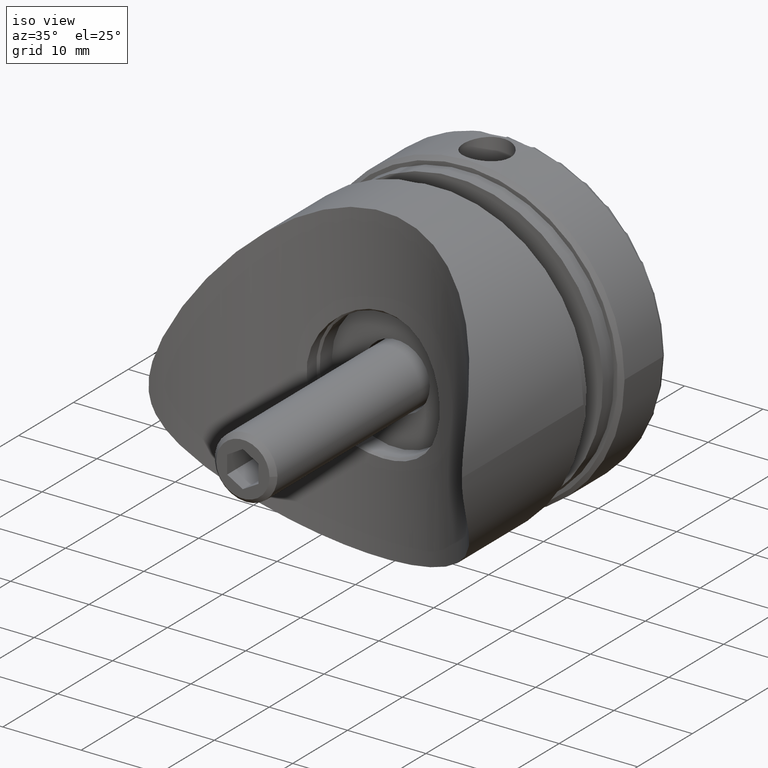
[diagram: clean part render]
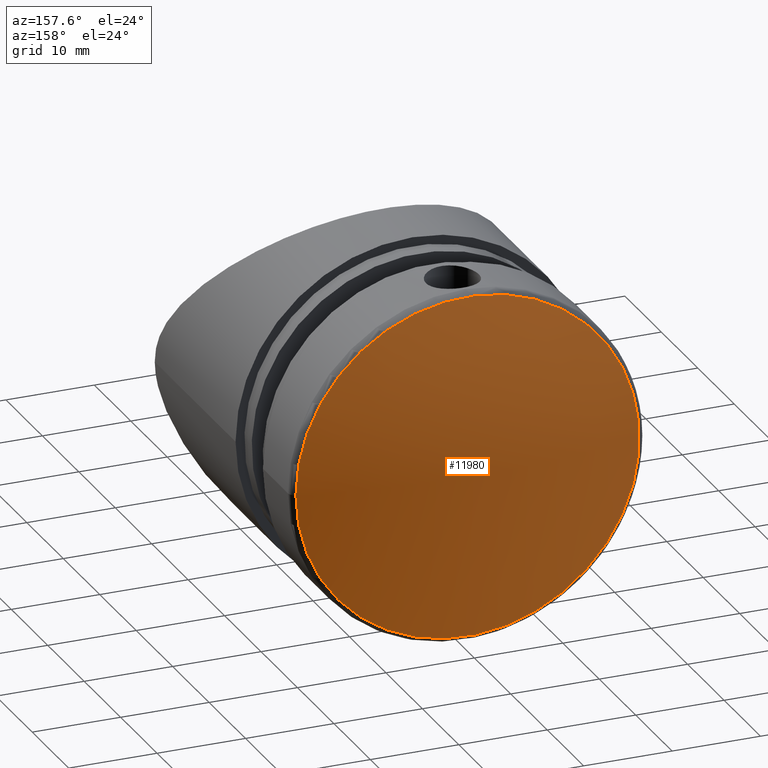
[diagram: tour spotlight — one face highlighted and labeled with its STEP entity id]
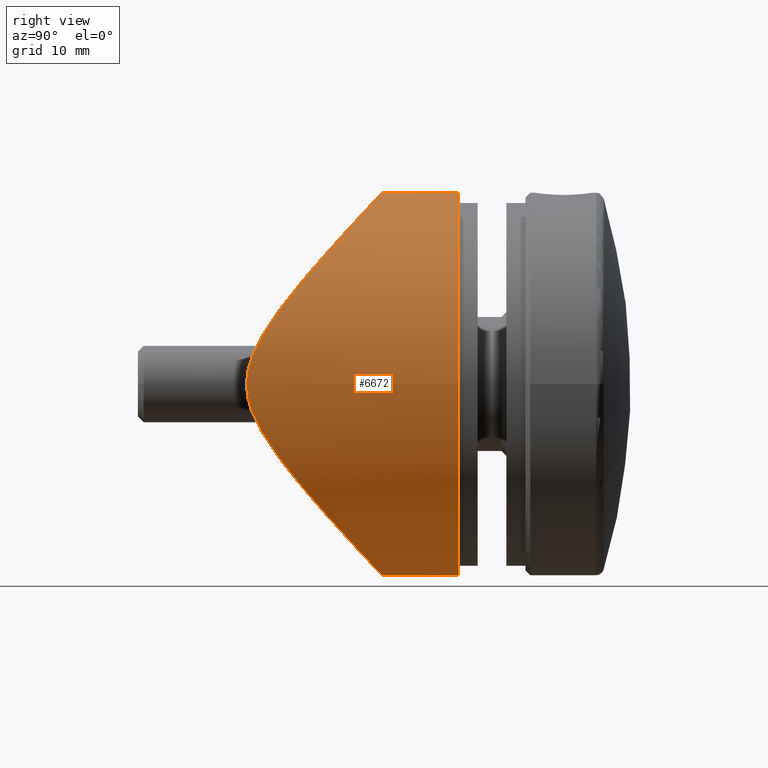
[diagram: tour spotlight — one face highlighted and labeled with its STEP entity id]
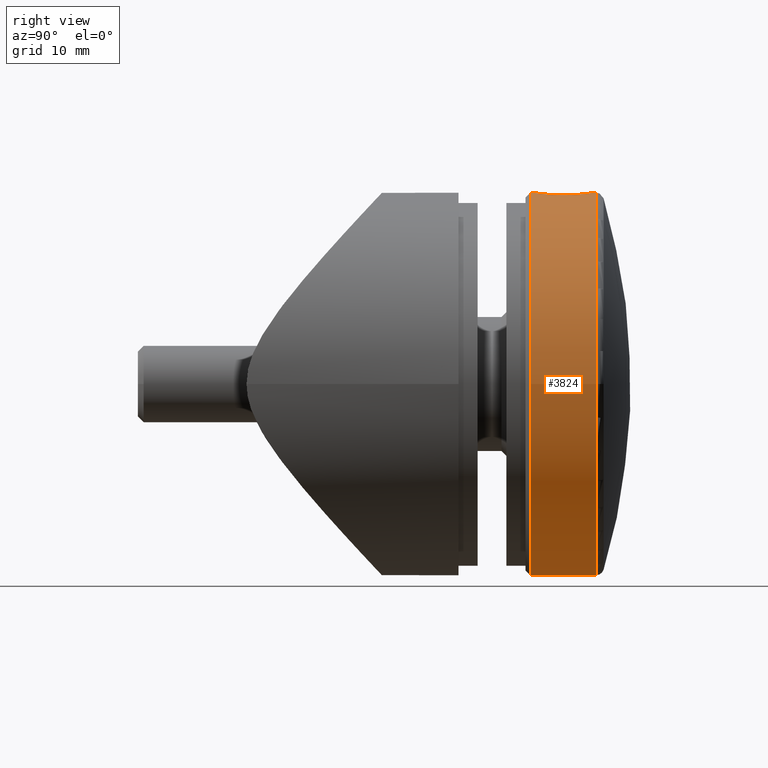
[diagram: tour spotlight — one face highlighted and labeled with its STEP entity id]
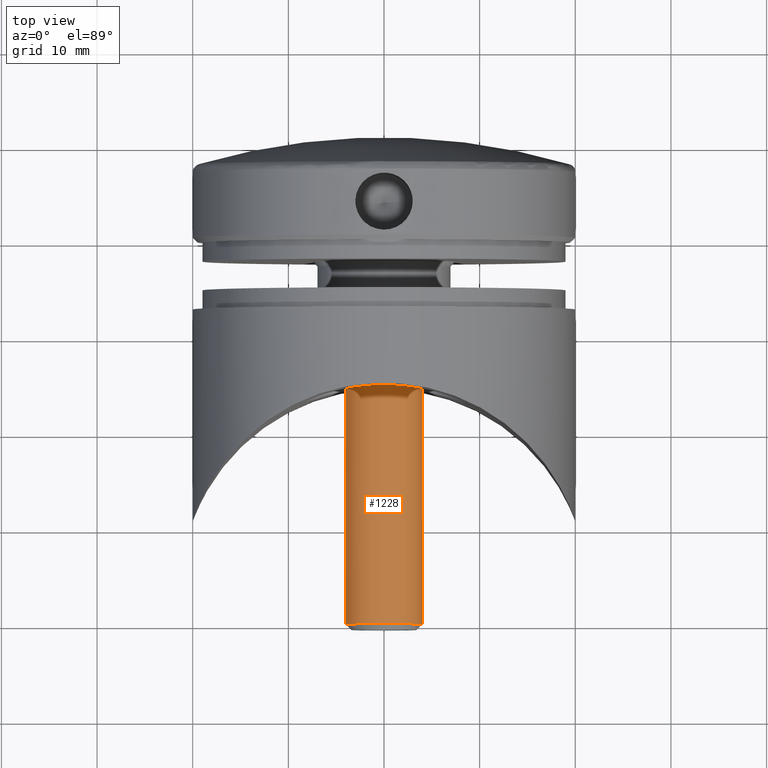
[diagram: tour spotlight — one face highlighted and labeled with its STEP entity id]
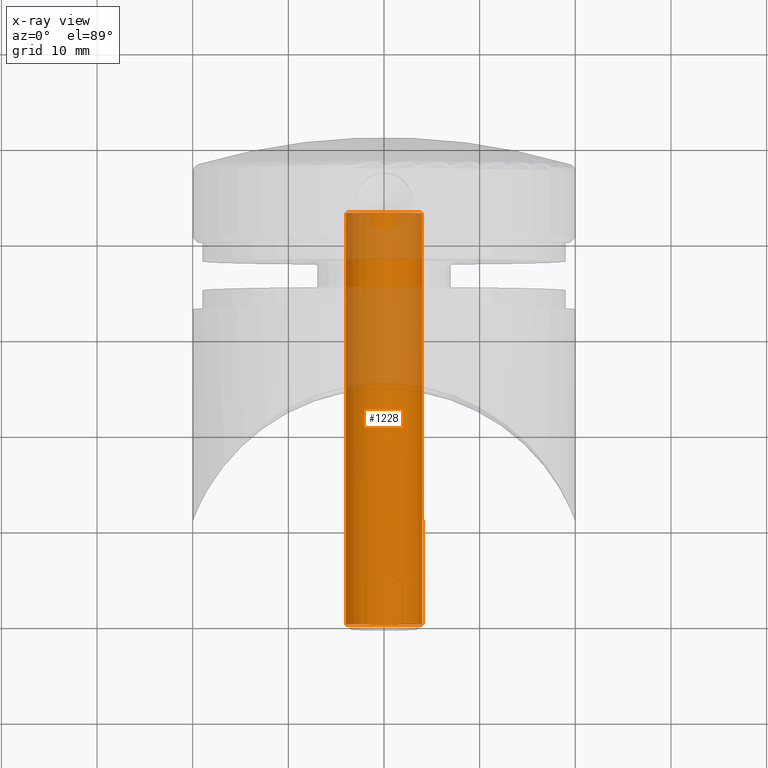
[diagram: x-ray of the same camera — body ghosted, this tour face saturated]
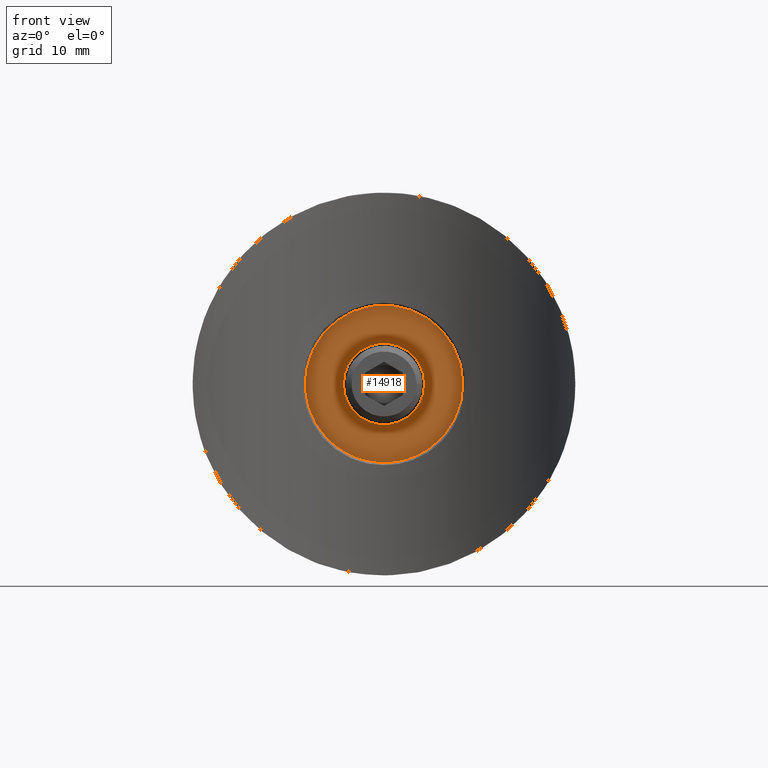
[diagram: tour spotlight — one face highlighted and labeled with its STEP entity id]
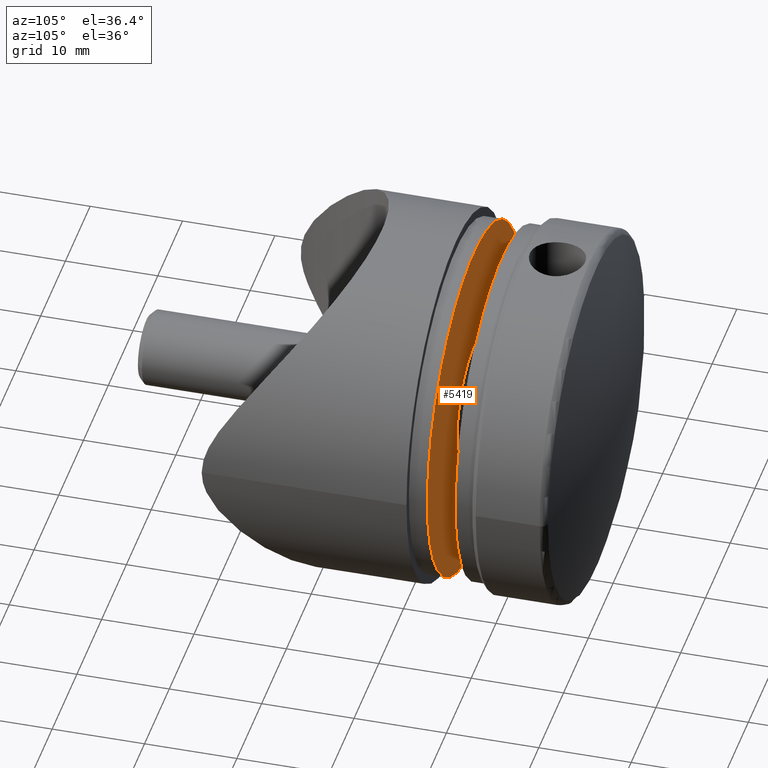
[diagram: tour spotlight — one face highlighted and labeled with its STEP entity id]
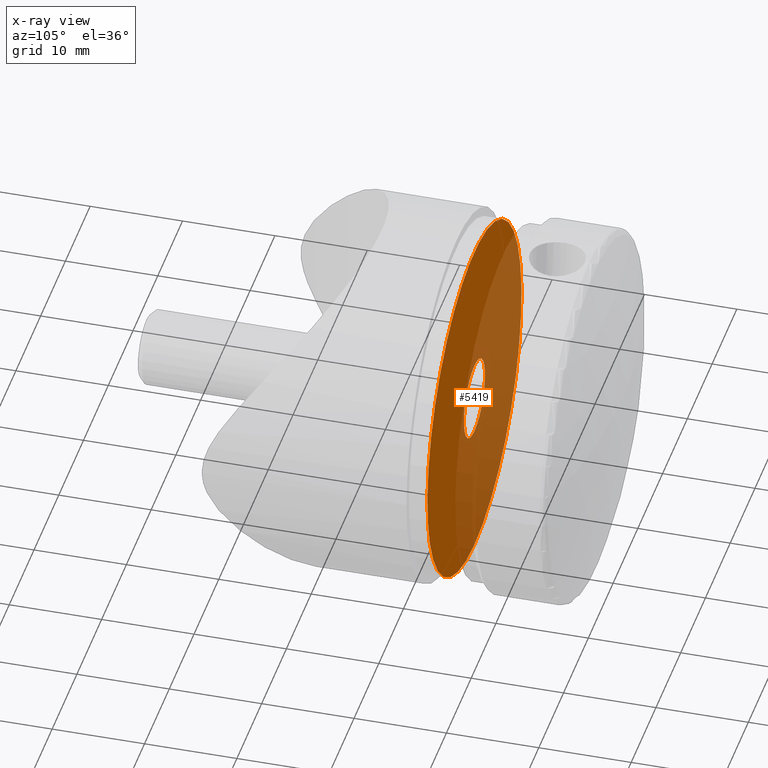
[diagram: x-ray of the same camera — body ghosted, this tour face saturated]
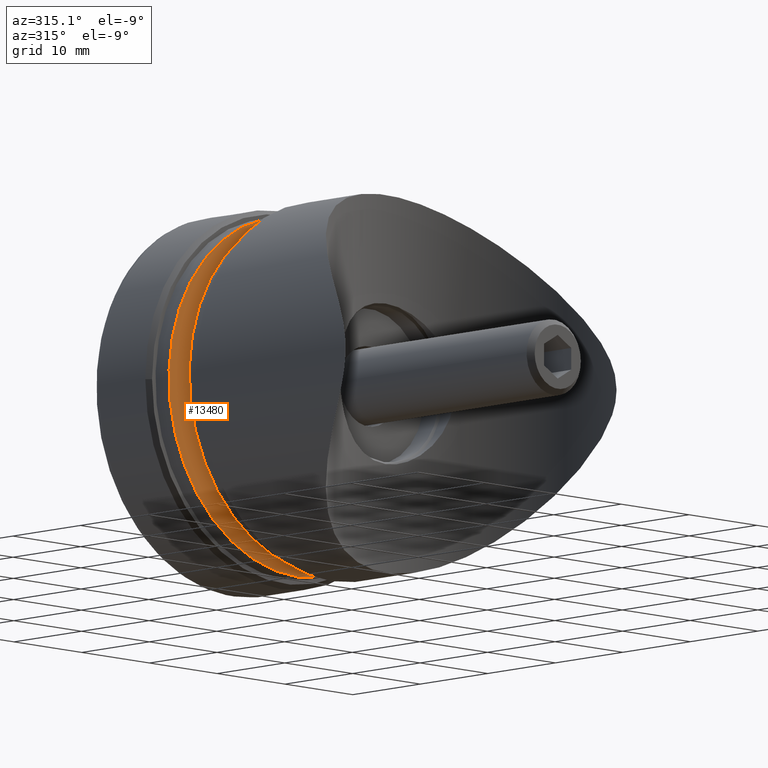
[diagram: tour spotlight — one face highlighted and labeled with its STEP entity id]
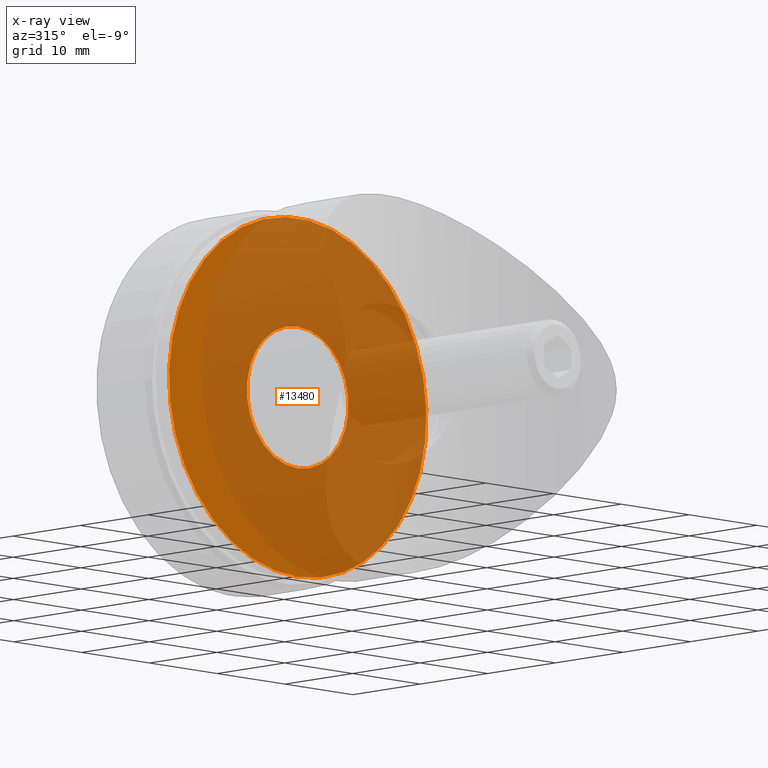
[diagram: x-ray of the same camera — body ghosted, this tour face saturated]
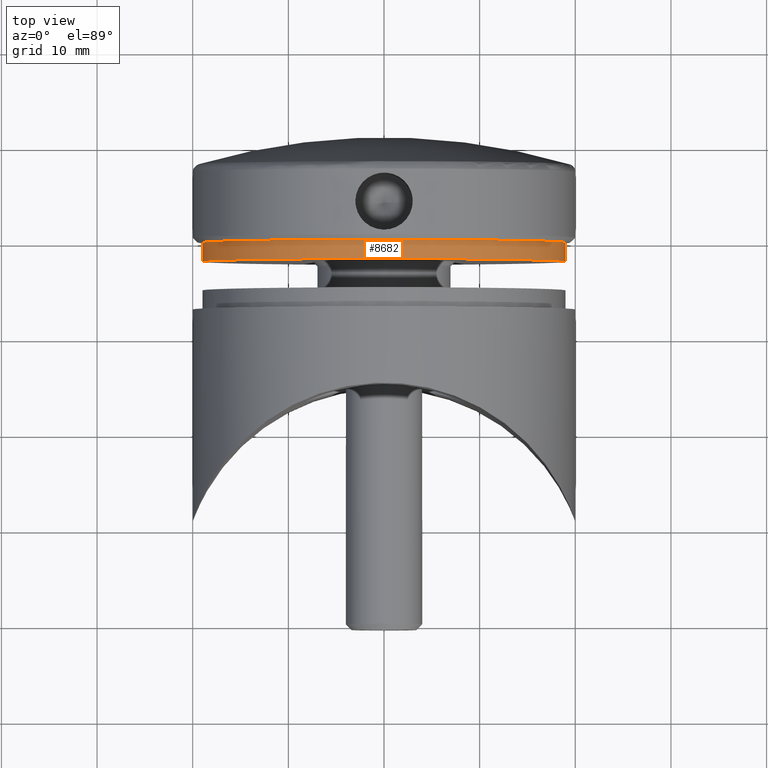
[diagram: tour spotlight — one face highlighted and labeled with its STEP entity id]
A machine part: a face-by-face anatomy tour. The part has 277 B-rep faces; the first image is the clean iso view, then the 8 largest visible faces are spotlighted one at a time (largest first), each with its STEP entity span.

Face 1 — auxiliary view, entity #11980. In plain terms, the highlighted spherical surface has radius 68.1667 mm.
Definition (entity closure, byte-faithful):
#1684 = CIRCLE ( 'NONE', #5597, 19.42800593765462480 ) ;
#1931 = EDGE_CURVE ( 'NONE', #5319, #5319, #1684, .T. ) ;
#2928 = FACE_OUTER_BOUND ( 'NONE', #8890, .T. ) ;
#3150 = DIRECTION ( 'NONE',  ( -9.462128050782586841E-16, 1.000000000000000000, 0.000000000000000000 ) ) ;
#3830 = DIRECTION ( 'NONE',  ( 1.000000000000000000, 9.161375814449584673E-16, 0.000000000000000000 ) ) ;
#4549 = SPHERICAL_SURFACE ( 'NONE', #4595, 68.16666666666708352 ) ;
#4595 = AXIS2_PLACEMENT_3D ( 'NONE', #8556, #4832, #3830 ) ;
#4832 = DIRECTION ( 'NONE',  ( 0.000000000000000000, -0.000000000000000000, 1.000000000000000000 ) ) ;
#5319 = VERTEX_POINT ( 'NONE', #10143 ) ;
#5597 = AXIS2_PLACEMENT_3D ( 'NONE', #6730, #3150, #11395 ) ;
#6730 = CARTESIAN_POINT ( 'NONE',  ( -6.182504818605450607E-14, 8.172808612301588838, 0.000000000000000000 ) ) ;
#8556 = CARTESIAN_POINT ( 'NONE',  ( 0.000000000000000000, -57.16666666666710483, 0.000000000000000000 ) ) ;
#8890 = EDGE_LOOP ( 'NONE', ( #11861 ) ) ;
#10143 = CARTESIAN_POINT ( 'NONE',  ( 19.42800593765456441, 8.172808612301606601, 0.000000000000000000 ) ) ;
#11395 = DIRECTION ( 'NONE',  ( 1.000000000000000000, 9.821882027923899333E-16, 0.000000000000000000 ) ) ;
#11861 = ORIENTED_EDGE ( 'NONE', *, *, #1931, .T. ) ;
#11980 = ADVANCED_FACE ( 'NONE', ( #2928 ), #4549, .T. ) ;

Face 2 — right view, entity #6672. In plain terms, the highlighted cylindrical surface (bore or boss wall) has radius 20 mm, axis along (-0, 1, -0).
Definition (entity closure, byte-faithful):
#34 = CARTESIAN_POINT ( 'NONE',  ( -0.3212517625965335966, 0.0007559221272324281697, 20.00080127770132776 ) ) ;
#78 = CARTESIAN_POINT ( 'NONE',  ( -1.423707661669336710, -0.04468498493483551159, 19.95262876967013455 ) ) ;
#548 = CARTESIAN_POINT ( 'NONE',  ( -20.00000000000001066, -14.16864166750126408, 0.000000000000000000 ) ) ;
#556 = CARTESIAN_POINT ( 'NONE',  ( -20.00000000000000355, -14.16864166750125520, -0.7438538045071343419 ) ) ;
#599 = CARTESIAN_POINT ( 'NONE',  ( -10.67129676124507576, -2.870034114313523510, -16.92819005594848036 ) ) ;
#768 = CARTESIAN_POINT ( 'NONE',  ( -19.95891271088634511, -14.04952605357424567, -1.460462933245232575 ) ) ;
#813 = CARTESIAN_POINT ( 'NONE',  ( 1.443042788460912274, -0.03664859779232368386, -19.96116567197127978 ) ) ;
#864 = CARTESIAN_POINT ( 'NONE',  ( 18.67303099744739825, -11.15113527214379729, 7.188747126023046441 ) ) ;
#926 = CARTESIAN_POINT ( 'NONE',  ( 16.09848629236730844, -7.394677405301776751, 11.88283824967515656 ) ) ;
#981 = CARTESIAN_POINT ( 'NONE',  ( 0.7013865843268883848, 0.0009540175825287750379, -20.00101125874969199 ) ) ;
#1031 = CARTESIAN_POINT ( 'NONE',  ( 19.41571021059040802, -12.68472683629726028, -4.809590501369070736 ) ) ;
#1091 = CARTESIAN_POINT ( 'NONE',  ( -19.80576347567701845, -13.63562562458948690, 2.867558343804631260 ) ) ;
#1145 = CARTESIAN_POINT ( 'NONE',  ( -19.69467694030808858, -13.34595577992201321, 3.542547133079260391 ) ) ;
#1192 = CARTESIAN_POINT ( 'NONE',  ( -4.981900604686585687, -0.5812507076659891858, 19.38286685772382967 ) ) ;
#1240 = CARTESIAN_POINT ( 'NONE',  ( -8.582388430382287936, -1.811952486804913054, 18.06817558892267783 ) ) ;
#2045 = CARTESIAN_POINT ( 'NONE',  ( 16.45215897161035201, -7.819186855976954398, -11.38767656949206497 ) ) ;
#2097 = CARTESIAN_POINT ( 'NONE',  ( 3.601992319121599451, -0.2960723389719750465, -19.68595700613442290 ) ) ;
#2138 = CARTESIAN_POINT ( 'NONE',  ( 13.70907561677181974, -4.988441781101143668, 14.61289565071479757 ) ) ;
#2191 = CARTESIAN_POINT ( 'NONE',  ( 18.88316143225521060, -11.55373589681965107, 6.619165848565370602 ) ) ;
#2248 = CARTESIAN_POINT ( 'NONE',  ( 19.98753685353072029, -14.13327530914729735, -0.7294908835457555307 ) ) ;
#2298 = CARTESIAN_POINT ( 'NONE',  ( -17.41347919499220609, -9.062184775302181805, 9.908423975086908086 ) ) ;
#2344 = CARTESIAN_POINT ( 'NONE',  ( -9.783190704478061051, -2.389470524505219018, 17.44706311454105219 ) ) ;
#2447 = CARTESIAN_POINT ( 'NONE',  ( -17.96716798978661345, -9.907694765512518487, 8.867489265264648424 ) ) ;
#2490 = CARTESIAN_POINT ( 'NONE',  ( -1.787020194496196979, -0.07234012291068590839, 19.92330747089745557 ) ) ;
#2934 = FACE_OUTER_BOUND ( 'NONE', #14609, .T. ) ;
#3117 = CARTESIAN_POINT ( 'NONE',  ( -20.00000000000001066, -14.16864166750126586, 8.673617379884035472E-16 ) ) ;
#3174 = CARTESIAN_POINT ( 'NONE',  ( -19.84552734962819542, -13.74299572348365395, -2.505560089121992462 ) ) ;
#3219 = CARTESIAN_POINT ( 'NONE',  ( 19.25227465473083299, -12.32139646943794808, -5.426959037185787871 ) ) ;
#3266 = CARTESIAN_POINT ( 'NONE',  ( 7.024992678245461697, -1.185492971014122432, -18.73890500303700435 ) ) ;
#3324 = CARTESIAN_POINT ( 'NONE',  ( 8.907623749838556648, -1.950381120722234352, -17.91977040247244801 ) ) ;
#3381 = CARTESIAN_POINT ( 'NONE',  ( 9.537069230093182526, -2.255019603833719799, 17.59228382303989946 ) ) ;
#3417 = EDGE_CURVE ( 'NONE', #7724, #7724, #8132, .T. ) ;
#3428 = CARTESIAN_POINT ( 'NONE',  ( -2.921943097494895003, -0.1529622588425147978, -19.83807041537036397 ) ) ;
#3581 = ORIENTED_EDGE ( 'NONE', *, *, #3417, .F. ) ;
#3619 = CARTESIAN_POINT ( 'NONE',  ( -20.00000000000001066, -14.16864166750126586, 8.673617379884035472E-16 ) ) ;
#3848 = CARTESIAN_POINT ( 'NONE',  ( 3.469446951953610245E-15, 7.999999999999991118, 0.000000000000000000 ) ) ;
#4186 = CARTESIAN_POINT ( 'NONE',  ( -9.525934541221582563, -2.249517287062285931, -17.59820343822726585 ) ) ;
#4244 = CARTESIAN_POINT ( 'NONE',  ( -12.74452116528310341, -4.247792177149228188, -15.42621282774123515 ) ) ;
#4337 = CARTESIAN_POINT ( 'NONE',  ( -18.88809484199479272, -11.56345648507171653, -6.604974506932034473 ) ) ;
#4384 = CARTESIAN_POINT ( 'NONE',  ( 7.667837506907817513, -1.423805830398192418, -18.48426899051388261 ) ) ;
#4434 = CARTESIAN_POINT ( 'NONE',  ( 19.95897499696880217, -14.04957822277978430, 1.463955949833976922 ) ) ;
#4480 = CARTESIAN_POINT ( 'NONE',  ( 10.36794238409684077, -2.705330591957435526, -17.10604587792376208 ) ) ;
#4524 = CARTESIAN_POINT ( 'NONE',  ( 19.16383612291161853, -12.13172280858550955, -5.731019258644068692 ) ) ;
#4580 = CARTESIAN_POINT ( 'NONE',  ( 17.42224631646582722, -9.074649935857944882, -9.893239267418106664 ) ) ;
#4636 = CARTESIAN_POINT ( 'NONE',  ( 2.950422548384595611, -0.1577959843931867612, 19.83293924604878455 ) ) ;
#4678 = CARTESIAN_POINT ( 'NONE',  ( -19.98718859834800554, -14.13228972184805521, 0.7391514785933475107 ) ) ;
#4724 = CARTESIAN_POINT ( 'NONE',  ( -7.008105109339631156, -1.179666498312528011, 18.74512592884875417 ) ) ;
#4817 = AXIS2_PLACEMENT_3D ( 'NONE', #3848, #5104, #7394 ) ;
#5104 = DIRECTION ( 'NONE',  ( 4.336808689942017736E-16, 1.000000000000000000, -0.000000000000000000 ) ) ;
#5409 = CARTESIAN_POINT ( 'NONE',  ( -18.67598394816563001, -11.15649681240542357, -7.181373799001321778 ) ) ;
#5498 = VERTEX_POINT ( 'NONE', #548 ) ;
#5514 = CARTESIAN_POINT ( 'NONE',  ( -1.487572311761780286, -0.001964567381009640033, -19.99791755834841922 ) ) ;
#5563 = CARTESIAN_POINT ( 'NONE',  ( 19.98003232008477070, -14.11204017149825418, -0.9116049903818022049 ) ) ;
#5611 = CARTESIAN_POINT ( 'NONE',  ( 19.42250491849333116, -12.69521890598764280, 4.815885602217600869 ) ) ;
#5663 = CARTESIAN_POINT ( 'NONE',  ( 19.62778134725502710, -13.18615757134551991, -3.854562005284565718 ) ) ;
#5724 = CARTESIAN_POINT ( 'NONE',  ( 10.65019874997200411, -2.866544747162279361, -16.93163805794995014 ) ) ;
#5772 = CARTESIAN_POINT ( 'NONE',  ( -19.91986884554411574, -13.94391070804814703, 1.822529726429121144 ) ) ;
#5788 = DIRECTION ( 'NONE',  ( 4.336808689942017736E-16, 1.000000000000000000, -0.000000000000000000 ) ) ;
#5818 = CARTESIAN_POINT ( 'NONE',  ( -7.650667410228208176, -1.417118552810562981, 18.49142312820937661 ) ) ;
#5922 = CARTESIAN_POINT ( 'NONE',  ( 5.740085814740922388, -0.7800100313007960473, 19.17138699386774547 ) ) ;
#5964 = CARTESIAN_POINT ( 'NONE',  ( -16.44386085859462554, -7.809018180543581877, 11.39960397993303509 ) ) ;
#6605 = CARTESIAN_POINT ( 'NONE',  ( -7.684224586050552475, -1.430175083774353872, -18.47745552695027627 ) ) ;
#6672 = ADVANCED_FACE ( 'NONE', ( #7154, #2934 ), #12496, .T. ) ;
#6711 = CARTESIAN_POINT ( 'NONE',  ( 19.25809568781965808, -12.32588329445132302, 5.432576983919008562 ) ) ;
#6755 = CARTESIAN_POINT ( 'NONE',  ( -5.722258373922668007, -0.7750991681285920309, -19.17661527265284604 ) ) ;
#6817 = CARTESIAN_POINT ( 'NONE',  ( 4.995446604706759608, -0.5939068961774143229, -19.36936066409099766 ) ) ;
#6865 = CARTESIAN_POINT ( 'NONE',  ( 19.84514753276226529, -13.74197593025510677, -2.508813626769893279 ) ) ;
#6906 = CARTESIAN_POINT ( 'NONE',  ( 11.46528275717368395, -3.365071600098220816, -16.39055462795271723 ) ) ;
#7039 = DIRECTION ( 'NONE',  ( -1.000000000000000000, 4.336808689942016750E-16, 0.000000000000000000 ) ) ;
#7083 = CARTESIAN_POINT ( 'NONE',  ( 3.469446951953614189E-15, 8.000000000000000000, 0.000000000000000000 ) ) ;
#7110 = CARTESIAN_POINT ( 'NONE',  ( 1.517591035247410236, -0.003278855372744287049, 19.99652441227884481 ) ) ;
#7154 = FACE_OUTER_BOUND ( 'NONE', #14323, .T. ) ;
#7161 = CARTESIAN_POINT ( 'NONE',  ( -2.869117852012113001, -0.1825316705057645483, 19.80642950592273621 ) ) ;
#7394 = DIRECTION ( 'NONE',  ( -1.000000000000000000, 4.336808689942016257E-16, 0.000000000000000000 ) ) ;
#7630 = CARTESIAN_POINT ( 'NONE',  ( -15.39768180609989479, -6.581445016064790821, -12.82300005358765738 ) ) ;
#7685 = CARTESIAN_POINT ( 'NONE',  ( -11.21515377510457157, -3.198677575831196496, -16.57196330418611296 ) ) ;
#7724 = VERTEX_POINT ( 'NONE', #14779 ) ;
#7896 = CARTESIAN_POINT ( 'NONE',  ( 14.95987032480067569, -6.167680704464570063, 13.28800768574469693 ) ) ;
#7954 = CARTESIAN_POINT ( 'NONE',  ( 6.022266506073524539, -0.8703403972052009552, -19.07502494992828801 ) ) ;
#7999 = CARTESIAN_POINT ( 'NONE',  ( 17.97607563521586371, -9.922243992773443821, 8.848807391459180494 ) ) ;
#8041 = CARTESIAN_POINT ( 'NONE',  ( 19.68943620909323045, -13.33944393837015063, -3.527319629337382523 ) ) ;
#8106 = CARTESIAN_POINT ( 'NONE',  ( 16.10490775549013875, -7.402093951351395695, -11.87424067976720288 ) ) ;
#8132 = CIRCLE ( 'NONE', #4817, 20.00000000000000711 ) ;
#8164 = CARTESIAN_POINT ( 'NONE',  ( -9.487619953148035634, -2.238568348512652850, 17.60963233688332252 ) ) ;
#8252 = CARTESIAN_POINT ( 'NONE',  ( -15.35339438223899045, -6.570548409619352270, 12.83104207595024526 ) ) ;
#8304 = CARTESIAN_POINT ( 'NONE',  ( -3.580085020684024233, -0.2922228044257489943, 19.69004450233414971 ) ) ;
#8343 = CARTESIAN_POINT ( 'NONE',  ( -18.66807969551785717, -11.14183807784417546, 7.201782650322988921 ) ) ;
#8813 = CARTESIAN_POINT ( 'NONE',  ( -14.12995637163691143, -5.384753506799314415, -14.16770329939506290 ) ) ;
#9029 = CARTESIAN_POINT ( 'NONE',  ( -19.79873005548582654, -13.61893238227558989, -2.850736302597860927 ) ) ;
#9083 = CARTESIAN_POINT ( 'NONE',  ( 19.49092298864949768, -12.85881350541244394, -4.495705719769745201 ) ) ;
#9128 = CARTESIAN_POINT ( 'NONE',  ( 2.891184782372357098, -0.1854606137361844986, -19.80332189374783169 ) ) ;
#9184 = CARTESIAN_POINT ( 'NONE',  ( 15.35389579787638326, -6.571053466596526782, 12.83047113715763743 ) ) ;
#9246 = CARTESIAN_POINT ( 'NONE',  ( 19.99969880948881951, -14.16778496166663359, 0.7447450516048614855 ) ) ;
#9296 = CARTESIAN_POINT ( 'NONE',  ( 18.67145296571582591, -11.14820013011578226, -7.192840719495753987 ) ) ;
#9340 = CARTESIAN_POINT ( 'NONE',  ( 5.046967591947403520, -0.5971372404721030369, 19.36596850698932570 ) ) ;
#9441 = CARTESIAN_POINT ( 'NONE',  ( -19.25685029817863381, -12.32312195144103839, 5.437152721178563297 ) ) ;
#9485 = CARTESIAN_POINT ( 'NONE',  ( -14.95439436037844061, -6.161919596673133270, 13.29456312023315512 ) ) ;
#9524 = CARTESIAN_POINT ( 'NONE',  ( -10.64607500609709767, -2.855288364241562071, 16.94415573867325975 ) ) ;
#9973 = AXIS2_PLACEMENT_3D ( 'NONE', #7083, #5788, #7039 ) ;
#10038 = CARTESIAN_POINT ( 'NONE',  ( -17.42209662239173795, -9.074741210686813275, -9.893041995524090026 ) ) ;
#10195 = CARTESIAN_POINT ( 'NONE',  ( -19.62839683349333697, -13.18768051117459095, -3.851338589216126707 ) ) ;
#10242 = CARTESIAN_POINT ( 'NONE',  ( 19.80497224913315435, -13.63347578257780057, 2.875225932643527216 ) ) ;
#10302 = CARTESIAN_POINT ( 'NONE',  ( 4.649435063501453413, -0.5130502811214568970, -19.45534801973172279 ) ) ;
#10355 = CARTESIAN_POINT ( 'NONE',  ( 5.681298637103876281, -0.7723617229028980624, -19.17940210517923916 ) ) ;
#10402 = CARTESIAN_POINT ( 'NONE',  ( 11.23335079084897004, -3.210064574946301708, 16.55959409739333310 ) ) ;
#10459 = CARTESIAN_POINT ( 'NONE',  ( 19.99756830191633838, -14.16171261330238096, -0.3620061195834740619 ) ) ;
#10520 = CARTESIAN_POINT ( 'NONE',  ( -19.99742450420848527, -14.16130339904403712, 0.3702244896288366394 ) ) ;
#10568 = CARTESIAN_POINT ( 'NONE',  ( -19.94938952526474907, -14.02605868761465580, 1.467647876184859035 ) ) ;
#10604 = CARTESIAN_POINT ( 'NONE',  ( -16.09728486640397094, -7.393298988473003597, 11.88443434670810461 ) ) ;
#10654 = CARTESIAN_POINT ( 'NONE',  ( -13.68485833657768858, -4.966831981453246669, 14.63700547523736795 ) ) ;
#11219 = CARTESIAN_POINT ( 'NONE',  ( -13.68312792312649684, -4.995920882665758178, -14.60009836194513255 ) ) ;
#11266 = CARTESIAN_POINT ( 'NONE',  ( -17.97521017978143831, -9.920410032357905195, -8.851544683566411109 ) ) ;
#11311 = CARTESIAN_POINT ( 'NONE',  ( -19.68997421424985461, -13.34078798627475848, -3.524389978297357562 ) ) ;
#11364 = CARTESIAN_POINT ( 'NONE',  ( -19.26155950853694421, -12.33346612399260600, -5.420160541580147928 ) ) ;
#11425 = CARTESIAN_POINT ( 'NONE',  ( 20.00007323066389020, -14.16884996468867897, -0.1760202316957727720 ) ) ;
#11464 = CARTESIAN_POINT ( 'NONE',  ( 19.79807153875043113, -13.61721666032202904, -2.855213712838476692 ) ) ;
#11516 = CARTESIAN_POINT ( 'NONE',  ( -5.037356094290672104, -0.5945655016694926243, -19.36870519412333991 ) ) ;
#11577 = CARTESIAN_POINT ( 'NONE',  ( 17.97419420847874605, -9.919233693739624158, -8.852615230754480535 ) ) ;
#11632 = CARTESIAN_POINT ( 'NONE',  ( 16.44921786800560071, -7.815486325336450157, 11.39204863318472150 ) ) ;
#11677 = CARTESIAN_POINT ( 'NONE',  ( 7.706650686282767282, -1.438970851100611181, 18.46804433813395718 ) ) ;
#11784 = CARTESIAN_POINT ( 'NONE',  ( 8.941554812782221973, -1.966192905354252840, 17.90278537003880288 ) ) ;
#11826 = CARTESIAN_POINT ( 'NONE',  ( -19.97950652136286820, -14.11055620948361167, 0.9232293012150538658 ) ) ;
#12416 = CARTESIAN_POINT ( 'NONE',  ( -8.923165290579799347, -1.957588355300366567, -17.91202923837164818 ) ) ;
#12496 = CYLINDRICAL_SURFACE ( 'NONE', #9973, 20.00000000000000355 ) ;
#12615 = CARTESIAN_POINT ( 'NONE',  ( 18.88192598282068246, -11.55127283814888983, -6.622813445532601762 ) ) ;
#12666 = CARTESIAN_POINT ( 'NONE',  ( 12.76520261225086195, -4.228032583897039842, -15.44983617031983769 ) ) ;
#12728 = CARTESIAN_POINT ( 'NONE',  ( 19.92117120023515042, -13.94748721938968750, -1.808580775605003188 ) ) ;
#12771 = CARTESIAN_POINT ( 'NONE',  ( 13.69692561702150435, -4.977475170995544929, -14.62514911639302717 ) ) ;
#12822 = CARTESIAN_POINT ( 'NONE',  ( -11.19162170413695456, -3.184010673399846336, 16.58789186928589743 ) ) ;
#12876 = CARTESIAN_POINT ( 'NONE',  ( -8.887592078320817990, -1.950025202645902178, 17.91995509104162920 ) ) ;
#13014 = CARTESIAN_POINT ( 'NONE',  ( 7.067282155625286499, -1.200547547116534552, 18.72282530394414479 ) ) ;
#13113 = B_SPLINE_CURVE_WITH_KNOTS ( 'NONE', 3,
 ( #3117, #556, #768, #3174, #9029, #11311, #10195, #13533, #11364, #4337, #5409, #11266, #10038, #14675, #7630, #8813, #11219, #4244, #14732, #7685, #599, #4186, #12416, #6605, #13965, #6755, #11516, #3428, #5514, #981, #813, #9128, #2097, #10302, #6817, #10355, #7954, #3266, #4384, #3324, #13812, #4480, #5724, #15139, #6906, #12666, #12771, #15030, #13866, #8106, #2045, #4580, #11577, #9296, #12615, #4524, #3219, #1031, #9083, #5663, #8041, #11464, #6865, #12728, #13913, #5563, #2248, #10459, #11425, #9246, #4434, #10242, #13749, #5611, #6711, #2191, #864, #7999, #14981, #11632, #926, #9184, #7896, #2138, #15083, #10402, #14933, #3381, #11784, #11677, #13014, #5922, #9340, #4636, #7110, #34, #15192, #78, #2490, #7161, #8304, #1192, #14214, #4724, #5818, #1240, #12876, #8164, #2344, #9524, #12822, #14163, #10654, #9485, #8252, #10604, #5964, #2298, #2447, #8343, #14068, #9441, #15239, #1145, #1091, #5772, #10568, #11826, #4678, #10520, #14019, #3619 ),
 .UNSPECIFIED., .T., .F.,
 ( 4, 2, 2, 2, 2, 2, 2, 2, 2, 2, 2, 2, 2, 2, 2, 2, 2, 2, 2, 2, 2, 2, 2, 2, 2, 2, 2, 2, 2, 2, 2, 2, 2, 2, 2, 2, 2, 2, 2, 2, 2, 2, 2, 2, 2, 2, 2, 2, 2, 2, 2, 2, 2, 2, 2, 2, 2, 2, 2, 2, 2, 2, 2, 2, 2, 4 ),
 ( 0.000000000000000000, 0.002181135063487500258, 0.003271702595231248435, 0.004362270126974997046, 0.006543405190462489064, 0.008724540253949981949, 0.01308681038092496599, 0.01744908050789994308, 0.01963021557138744030, 0.02181135063487493406, 0.02399248569836242434, 0.02617362076184991809, 0.02835475582533740491, 0.03053589088882489519, 0.03489816101579987229, 0.03707929607928736604, 0.03926043114277485285, 0.04035099867451861361, 0.04144156620626236048, 0.04362270126974985424, 0.04580383633323734105, 0.04689440386498109486, 0.04798497139672484174, 0.05234724152369982231, 0.05452837658718730218, 0.05670951165067478900, 0.06107178177764975568, 0.06325291684113723556, 0.06434348437288096856, 0.06543405190462471543, 0.06652461943636846231, 0.06761518696811220919, 0.06870575449985594219, 0.06925103826572780175, 0.06979632203159967518, 0.07197745709508714118, 0.07415859215857460718, 0.07633972722206207318, 0.07852086228554953917, 0.08288313241252449892, 0.08506426747601197880, 0.08724540253949944479, 0.09160767266647439067, 0.09378880772996185666, 0.09596994279344932266, 0.09815107785693680253, 0.1003322129204242824, 0.1046944830473992283, 0.1057850505791429613, 0.1068756181108866943, 0.1090567531743741603, 0.1112378882378616263, 0.1134190233013490923, 0.1145095908330928391, 0.1156001583648365721, 0.1177812934283240659, 0.1221435635552990118, 0.1243246986187864916, 0.1265058336822739715, 0.1308681038092489313, 0.1330492388727364528, 0.1352303739362239188, 0.1374115089997114125, 0.1385020765314551594, 0.1390473602973270328, 0.1395926440631989063 ),
 .UNSPECIFIED. ) ;
#13533 = CARTESIAN_POINT ( 'NONE',  ( -19.42396459858453284, -12.69855878986711417, -4.810060706523267449 ) ) ;
#13703 = ORIENTED_EDGE ( 'NONE', *, *, #14238, .F. ) ;
#13749 = CARTESIAN_POINT ( 'NONE',  ( 19.69529329495819425, -13.34758503442778732, 3.538625929385478486 ) ) ;
#13812 = CARTESIAN_POINT ( 'NONE',  ( 9.504539276805724413, -2.238675249165565262, -17.60987997023239870 ) ) ;
#13866 = CARTESIAN_POINT ( 'NONE',  ( 15.35812788088658465, -6.575425710998819895, -12.82550402628368680 ) ) ;
#13913 = CARTESIAN_POINT ( 'NONE',  ( 19.95039960971509885, -14.02887598900819555, -1.453415320258345522 ) ) ;
#13965 = CARTESIAN_POINT ( 'NONE',  ( -7.044712711932672455, -1.192680397013605509, -18.73122625509618189 ) ) ;
#14019 = CARTESIAN_POINT ( 'NONE',  ( -20.00000000000001421, -14.16864166750126763, 0.1859634511267820034 ) ) ;
#14068 = CARTESIAN_POINT ( 'NONE',  ( -18.88069321341808759, -11.54885130794066939, 6.626336612387733638 ) ) ;
#14163 = CARTESIAN_POINT ( 'NONE',  ( -12.74985085080135327, -4.216644194357811237, 15.46232567969132532 ) ) ;
#14214 = CARTESIAN_POINT ( 'NONE',  ( -5.675915445119477099, -0.7620139298854561316, 19.19055150775516339 ) ) ;
#14238 = EDGE_CURVE ( 'NONE', #5498, #5498, #13113, .T. ) ;
#14323 = EDGE_LOOP ( 'NONE', ( #13703 ) ) ;
#14609 = EDGE_LOOP ( 'NONE', ( #3581 ) ) ;
#14675 = CARTESIAN_POINT ( 'NONE',  ( -16.13322401897293545, -7.406145057258117781, -11.87942815958711229 ) ) ;
#14732 = CARTESIAN_POINT ( 'NONE',  ( -12.25178114035703913, -3.887543729819370686, -15.82098292911427961 ) ) ;
#14779 = CARTESIAN_POINT ( 'NONE',  ( -20.00000000000000355, 8.000000000000000000, 0.000000000000000000 ) ) ;
#14933 = CARTESIAN_POINT ( 'NONE',  ( 10.68703006862322979, -2.879100458136404583, 16.91837840699645668 ) ) ;
#14981 = CARTESIAN_POINT ( 'NONE',  ( 17.42340351031308643, -9.075936769288423633, 9.891772957192978666 ) ) ;
#15030 = CARTESIAN_POINT ( 'NONE',  ( 14.95885199439032931, -6.166478529419801013, -13.28939187918929754 ) ) ;
#15083 = CARTESIAN_POINT ( 'NONE',  ( 12.78461375755284912, -4.243071108786606871, 15.43330676533565438 ) ) ;
#15139 = CARTESIAN_POINT ( 'NONE',  ( 11.19845773995333715, -3.196198757812630742, -16.57412576837171869 ) ) ;
#15192 = CARTESIAN_POINT ( 'NONE',  ( -0.6916896111209580589, -0.008118007727465894816, 19.99139574437041489 ) ) ;
#15239 = CARTESIAN_POINT ( 'NONE',  ( -19.42035002056327286, -12.69022236055184116, 4.824929538552837904 ) ) ;

Face 3 — right view, entity #3824. In plain terms, the highlighted cylindrical surface (bore or boss wall) has radius 20 mm, axis along (0, -1, 0).
Definition (entity closure, byte-faithful):
#26 = CARTESIAN_POINT ( 'NONE',  ( -1.329000246935090113, 1.298249859347310409, 19.95662573320378286 ) ) ;
#69 = CARTESIAN_POINT ( 'NONE',  ( -2.903185432767896312, 3.213945165983599139, 19.78820432185765199 ) ) ;
#124 = CARTESIAN_POINT ( 'NONE',  ( -2.981144381110904185, 4.384677817788499965, 19.77660965061653187 ) ) ;
#182 = CARTESIAN_POINT ( 'NONE',  ( -2.261463040302941430, 5.975914504907145819, 19.87221892517047905 ) ) ;
#248 = DIRECTION ( 'NONE',  ( 9.462128050782584868E-16, -1.000000000000000000, -0.000000000000000000 ) ) ;
#461 = DIRECTION ( 'NONE',  ( -1.000000000000000000, -9.486769009248167742E-16, 0.000000000000000000 ) ) ;
#1065 = ORIENTED_EDGE ( 'NONE', *, *, #5394, .T. ) ;
#1184 = CARTESIAN_POINT ( 'NONE',  ( 2.904122174186587024, 3.217596731754319705, 19.78806622293176076 ) ) ;
#1233 = CARTESIAN_POINT ( 'NONE',  ( -2.695737535104842042, 2.663983177191850515, 19.81763806455638033 ) ) ;
#1336 = CARTESIAN_POINT ( 'NONE',  ( -2.385346488580513125, 5.824998558950380989, 19.85754949948118053 ) ) ;
#1384 = CARTESIAN_POINT ( 'NONE',  ( 2.695634571067645702, 2.663759504817301504, 19.81765225613440862 ) ) ;
#1551 = CARTESIAN_POINT ( 'NONE',  ( 2.999999999999987566, 3.994999999999995222, 19.77371993328518585 ) ) ;
#1622 = EDGE_CURVE ( 'NONE', #2959, #2959, #13878, .T. ) ;
#2050 = VERTEX_POINT ( 'NONE', #13696 ) ;
#2387 = CARTESIAN_POINT ( 'NONE',  ( -1.504275438480749294, 1.392061028481431206, 19.94401427874445432 ) ) ;
#2440 = CARTESIAN_POINT ( 'NONE',  ( 2.382192207591608657, 5.829160075772611194, 19.85793123343768585 ) ) ;
#2482 = CARTESIAN_POINT ( 'NONE',  ( 1.827406881401280492, 6.382266513394359464, 19.91701262681982598 ) ) ;
#2526 = CARTESIAN_POINT ( 'NONE',  ( 2.980494632510935382, 3.601384464667872098, 19.77670706137168111 ) ) ;
#2586 = CARTESIAN_POINT ( 'NONE',  ( -0.3963926871789849038, 6.975121601832649176, 19.99699192943738524 ) ) ;
#2593 = CIRCLE ( 'NONE', #9681, 19.99999999999999289 ) ;
#2791 = CARTESIAN_POINT ( 'NONE',  ( 2.694944518628680008, 5.327454306437990894, 19.81774487506233484 ) ) ;
#2863 = DIRECTION ( 'NONE',  ( 1.000000000000000000, 9.462128050782584868E-16, 0.000000000000000000 ) ) ;
#2905 = CARTESIAN_POINT ( 'NONE',  ( 2.999999999999988454, 3.994999999999996998, 19.77371993328518229 ) ) ;
#2959 = VERTEX_POINT ( 'NONE', #2905 ) ;
#3557 = EDGE_LOOP ( 'NONE', ( #7334 ) ) ;
#3574 = CARTESIAN_POINT ( 'NONE',  ( 1.328779319930804448, 6.691839189702617041, 19.95663814315420836 ) ) ;
#3614 = CARTESIAN_POINT ( 'NONE',  ( -2.980208671656109143, 3.598908363933509769, 19.77675080022012466 ) ) ;
#3665 = CARTESIAN_POINT ( 'NONE',  ( 0.7798554023450405825, 1.091411069866732531, 19.98572920600360447 ) ) ;
#3720 = CARTESIAN_POINT ( 'NONE',  ( 1.504243725710038060, 1.391897211145205926, 19.94402935115139996 ) ) ;
#3767 = CARTESIAN_POINT ( 'NONE',  ( 0.3908299546655025769, 6.975865032044842984, 19.99710334011701107 ) ) ;
#3824 = ADVANCED_FACE ( 'NONE', ( #13997, #7730, #13234 ), #4234, .T. ) ;
#4009 = CARTESIAN_POINT ( 'NONE',  ( 2.602028829569768220, 5.501130428467652322, 19.83032320855959796 ) ) ;
#4234 = CYLINDRICAL_SURFACE ( 'NONE', #13819, 19.99999999999999289 ) ;
#4716 = CARTESIAN_POINT ( 'NONE',  ( -0.9654443059216516465, 1.147787280579954272, 19.97751409969940539 ) ) ;
#4773 = CARTESIAN_POINT ( 'NONE',  ( 1.330056958386002686, 1.298871982216261767, 19.95654305612850621 ) ) ;
#4782 = DIRECTION ( 'NONE',  ( 9.462128050782586841E-16, -1.000000000000000000, -0.000000000000000000 ) ) ;
#4816 = CARTESIAN_POINT ( 'NONE',  ( -1.980792087563050030, 1.733243495970535397, 19.90216665992417333 ) ) ;
#4858 = CARTESIAN_POINT ( 'NONE',  ( -2.904244946109210357, 4.772452195124960106, 19.78804872610958299 ) ) ;
#4881 = CARTESIAN_POINT ( 'NONE',  ( 0.000000000000000000, 0.000000000000000000, 0.000000000000000000 ) ) ;
#4910 = CARTESIAN_POINT ( 'NONE',  ( 0.1957541252189639036, 6.995166735568335348, 20.00002501032647118 ) ) ;
#4968 = CARTESIAN_POINT ( 'NONE',  ( 2.999999999999987566, 4.193494672168482040, 19.77371993328518940 ) ) ;
#5139 = VERTEX_POINT ( 'NONE', #14822 ) ;
#5219 = DIRECTION ( 'NONE',  ( -9.462128050782584868E-16, 1.000000000000000000, 0.000000000000000000 ) ) ;
#5394 = EDGE_CURVE ( 'NONE', #5139, #5139, #2593, .T. ) ;
#5911 = CARTESIAN_POINT ( 'NONE',  ( -1.831084454568192577, 6.379415806760995622, 19.91667079449274524 ) ) ;
#5967 = DIRECTION ( 'NONE',  ( 1.000000000000000000, 9.540979117872442964E-16, 0.000000000000000000 ) ) ;
#6005 = CARTESIAN_POINT ( 'NONE',  ( -0.3933378054690898074, 1.014428953963818492, 19.99705895379198850 ) ) ;
#6112 = CARTESIAN_POINT ( 'NONE',  ( 0.9692005117596770303, 1.149159496943955805, 19.97731995618197587 ) ) ;
#7103 = CARTESIAN_POINT ( 'NONE',  ( 2.999999999999987566, 3.796505327831507959, 19.77371993328518229 ) ) ;
#7153 = CARTESIAN_POINT ( 'NONE',  ( -1.985183788243350067, 6.252716254382630900, 19.90171714750904997 ) ) ;
#7201 = CARTESIAN_POINT ( 'NONE',  ( -2.846751857708068822, 4.961538809150909834, 19.79650720354969806 ) ) ;
#7248 = CARTESIAN_POINT ( 'NONE',  ( -2.604078776341595347, 5.497513335365487919, 19.83005102670025011 ) ) ;
#7334 = ORIENTED_EDGE ( 'NONE', *, *, #1622, .T. ) ;
#7730 = FACE_OUTER_BOUND ( 'NONE', #11520, .T. ) ;
#8058 = AXIS2_PLACEMENT_3D ( 'NONE', #9855, #5219, #461 ) ;
#8243 = CARTESIAN_POINT ( 'NONE',  ( 1.982912023966428183, 1.735301850126051981, 19.90194385507969344 ) ) ;
#8296 = CARTESIAN_POINT ( 'NONE',  ( 2.385781400097931382, 2.165670691361518685, 19.85749434712200312 ) ) ;
#8336 = CARTESIAN_POINT ( 'NONE',  ( 1.501080283454475639, 6.599844582463810561, 19.94426147716974640 ) ) ;
#8377 = CARTESIAN_POINT ( 'NONE',  ( -2.601643994846837504, 2.488485653911706397, 19.83036650118665634 ) ) ;
#8434 = CARTESIAN_POINT ( 'NONE',  ( -0.7783033420959301063, 1.091078117895944333, 19.98577807688070962 ) ) ;
#8489 = CARTESIAN_POINT ( 'NONE',  ( 2.902947195030746830, 4.777284174358786828, 19.78823979352068108 ) ) ;
#8591 = CARTESIAN_POINT ( 'NONE',  ( 2.844982231046248256, 4.966718345130437307, 19.79676271506473029 ) ) ;
#9433 = CARTESIAN_POINT ( 'NONE',  ( -2.999924367750781418, 3.797927883773788427, 19.77373140794606243 ) ) ;
#9479 = CARTESIAN_POINT ( 'NONE',  ( 2.257915189029448211, 5.979935286169751230, 19.87262286955643020 ) ) ;
#9517 = CARTESIAN_POINT ( 'NONE',  ( -2.384381064545721518, 2.163917290254680825, 19.85766134232187596 ) ) ;
#9568 = CARTESIAN_POINT ( 'NONE',  ( -1.333671717301641468, 6.689445687771606863, 19.95631324620889657 ) ) ;
#9614 = CARTESIAN_POINT ( 'NONE',  ( -2.846314737807527973, 3.026961233156909792, 19.79657222170714093 ) ) ;
#9681 = AXIS2_PLACEMENT_3D ( 'NONE', #11828, #4782, #5967 ) ;
#9855 = CARTESIAN_POINT ( 'NONE',  ( -4.731064025391258908E-16, 0.4999999999999964473, 0.000000000000000000 ) ) ;
#10031 = EDGE_CURVE ( 'NONE', #2050, #2050, #10833, .T. ) ;
#10597 = CARTESIAN_POINT ( 'NONE',  ( -0.9703054951543788054, 6.840562345118187615, 19.97727773938222029 ) ) ;
#10645 = CARTESIAN_POINT ( 'NONE',  ( 0.1976517996777144015, 0.9951113623459328927, 19.99998329565072197 ) ) ;
#10695 = CARTESIAN_POINT ( 'NONE',  ( -0.1942566587511933562, 0.9948895982359851065, 20.00001656026199015 ) ) ;
#10735 = CARTESIAN_POINT ( 'NONE',  ( 2.259260527010547470, 2.011589378261172456, 19.87246967985173995 ) ) ;
#10781 = CARTESIAN_POINT ( 'NONE',  ( -0.2008317574897388047, 6.994831115902126584, 19.99997466739415231 ) ) ;
#10833 = CIRCLE ( 'NONE', #8058, 19.99999999999999289 ) ;
#11250 = ORIENTED_EDGE ( 'NONE', *, *, #10031, .T. ) ;
#11520 = EDGE_LOOP ( 'NONE', ( #1065 ) ) ;
#11776 = CARTESIAN_POINT ( 'NONE',  ( -2.697296528857994424, 5.322699078997125355, 19.81742377391596577 ) ) ;
#11818 = CARTESIAN_POINT ( 'NONE',  ( -1.505751477479396305, 6.597118657433129307, 19.94390529219465336 ) ) ;
#11828 = CARTESIAN_POINT ( 'NONE',  ( -7.007641024777777317E-15, 7.405988364528839796, 0.000000000000000000 ) ) ;
#11864 = CARTESIAN_POINT ( 'NONE',  ( 2.999999999999987566, 3.994999999999995222, 19.77371993328518585 ) ) ;
#11913 = CARTESIAN_POINT ( 'NONE',  ( -2.260454243774321359, 2.012721919236700963, 19.87234565081214654 ) ) ;
#12355 = EDGE_LOOP ( 'NONE', ( #11250 ) ) ;
#12963 = CARTESIAN_POINT ( 'NONE',  ( -3.000075187788553865, 4.189762673103095914, 19.77370852605633189 ) ) ;
#13006 = CARTESIAN_POINT ( 'NONE',  ( -0.7799630153351138073, 6.898430663692166398, 19.98570666959620112 ) ) ;
#13061 = CARTESIAN_POINT ( 'NONE',  ( 1.832071248250929374, 1.611219754882194932, 19.91659034290908181 ) ) ;
#13158 = CARTESIAN_POINT ( 'NONE',  ( 0.7748024653411145213, 6.899821084409995642, 19.98590931602772969 ) ) ;
#13234 = FACE_OUTER_BOUND ( 'NONE', #12355, .T. ) ;
#13301 = CARTESIAN_POINT ( 'NONE',  ( 2.980492046609052093, 4.389636676817129768, 19.77670861652950407 ) ) ;
#13696 = CARTESIAN_POINT ( 'NONE',  ( -19.99999999999999289, 0.4999999999999774625, 0.000000000000000000 ) ) ;
#13819 = AXIS2_PLACEMENT_3D ( 'NONE', #4881, #248, #2863 ) ;
#13878 = B_SPLINE_CURVE_WITH_KNOTS ( 'NONE', 3,
 ( #11864, #7103, #2526, #1184, #14352, #1384, #14250, #8296, #10735, #8243, #13061, #3720, #4773, #6112, #3665, #14207, #10645, #10695, #6005, #8434, #4716, #26, #2387, #14294, #4816, #11913, #9517, #8377, #1233, #9614, #69, #3614, #9433, #12963, #124, #4858, #7201, #11776, #7248, #1336, #182, #7153, #5911, #11818, #9568, #10597, #13006, #2586, #10781, #4910, #3767, #13158, #15281, #3574, #8336, #2482, #14155, #9479, #2440, #4009, #2791, #8591, #8489, #13301, #4968, #1551 ),
 .UNSPECIFIED., .T., .F.,
 ( 4, 2, 2, 2, 2, 2, 2, 2, 2, 2, 2, 2, 2, 2, 2, 2, 2, 2, 2, 2, 2, 2, 2, 2, 2, 2, 2, 2, 2, 2, 2, 2, 4 ),
 ( 0.000000000000000000, 0.0005869663246212992059, 0.001173932649242598412, 0.001760898973863897835, 0.002347865298485196824, 0.002934831623106494512, 0.003521797947727792200, 0.004108764272349090321, 0.004695730596970387576, 0.005282696921591685697, 0.005869663246212983819, 0.006456629570834281941, 0.007043595895455580930, 0.007630562220076878184, 0.008217528544698177173, 0.008804494869319475295, 0.009391461193940773416, 0.009978427518562071538, 0.01056539384318336619, 0.01115236016780466431, 0.01173932649242596243, 0.01232629281704726056, 0.01291325914166855521, 0.01350022546628985333, 0.01408719179091115145, 0.01467415811553244784, 0.01526112444015374423, 0.01584809076477504061, 0.01643505708939634047, 0.01702202341401763686, 0.01760898973863893324, 0.01819595606326022963, 0.01878292238788152602 ),
 .UNSPECIFIED. ) ;
#13997 = FACE_BOUND ( 'NONE', #3557, .T. ) ;
#14155 = CARTESIAN_POINT ( 'NONE',  ( 1.981482987437620080, 6.255945435349328676, 19.90208647069351500 ) ) ;
#14207 = CARTESIAN_POINT ( 'NONE',  ( 0.3924843016013101482, 1.014235132259551975, 19.99708734834322144 ) ) ;
#14250 = CARTESIAN_POINT ( 'NONE',  ( 2.603472936415865746, 2.491561515110397362, 19.83012766737487098 ) ) ;
#14294 = CARTESIAN_POINT ( 'NONE',  ( -1.829026254143617969, 1.609041315127196059, 19.91685751084322575 ) ) ;
#14352 = CARTESIAN_POINT ( 'NONE',  ( 2.846307810905473357, 3.026920022762669582, 19.79657340378337693 ) ) ;
#14822 = CARTESIAN_POINT ( 'NONE',  ( 19.99999999999998579, 7.405988364528859336, 0.000000000000000000 ) ) ;
#15281 = CARTESIAN_POINT ( 'NONE',  ( 0.9657274049644248848, 6.842097939216760238, 19.97749811756152027 ) ) ;

Face 4 — top view, entity #1228. An x-ray twin of the same camera follows (body ghosted, this face saturated) — the face is partly hidden behind the body. In plain terms, the highlighted cylindrical surface (bore or boss wall) has radius 4 mm, axis along (0, 1, -0).
Definition (entity closure, byte-faithful):
#153 = VERTEX_POINT ( 'NONE', #8960 ) ;
#1228 = ADVANCED_FACE ( 'NONE', ( #15125, #3728 ), #2258, .T. ) ;
#1832 = CARTESIAN_POINT ( 'NONE',  ( 1.399999999999979261, -4.538988261647289596E-17, 0.000000000000000000 ) ) ;
#2258 = CYLINDRICAL_SURFACE ( 'NONE', #4120, 4.000000000000000000 ) ;
#2716 = EDGE_CURVE ( 'NONE', #153, #153, #5718, .T. ) ;
#3071 = EDGE_LOOP ( 'NONE', ( #10362 ) ) ;
#3606 = CARTESIAN_POINT ( 'NONE',  ( 45.00000000000000000, 0.000000000000000000, 0.000000000000000000 ) ) ;
#3728 = FACE_OUTER_BOUND ( 'NONE', #3071, .T. ) ;
#4082 = CARTESIAN_POINT ( 'NONE',  ( 44.39999999999999147, 0.000000000000000000, -4.000000000000000000 ) ) ;
#4120 = AXIS2_PLACEMENT_3D ( 'NONE', #3606, #14200, #14286 ) ;
#4290 = DIRECTION ( 'NONE',  ( -1.000000000000000000, 3.242134472605255366E-17, -0.000000000000000000 ) ) ;
#5718 = CIRCLE ( 'NONE', #9177, 4.000000000000000000 ) ;
#7073 = AXIS2_PLACEMENT_3D ( 'NONE', #12460, #11310, #14674 ) ;
#7906 = ORIENTED_EDGE ( 'NONE', *, *, #13360, .T. ) ;
#8960 = CARTESIAN_POINT ( 'NONE',  ( 1.399999999999979039, -4.000000000000000000, 0.000000000000000000 ) ) ;
#9177 = AXIS2_PLACEMENT_3D ( 'NONE', #1832, #4290, #10192 ) ;
#9910 = VERTEX_POINT ( 'NONE', #4082 ) ;
#10083 = CIRCLE ( 'NONE', #7073, 4.000000000000000000 ) ;
#10192 = DIRECTION ( 'NONE',  ( -5.421010862427522170E-17, -1.000000000000000000, 0.000000000000000000 ) ) ;
#10362 = ORIENTED_EDGE ( 'NONE', *, *, #2716, .F. ) ;
#11310 = DIRECTION ( 'NONE',  ( -1.000000000000000000, 0.000000000000000000, 0.000000000000000000 ) ) ;
#11741 = EDGE_LOOP ( 'NONE', ( #7906 ) ) ;
#12460 = CARTESIAN_POINT ( 'NONE',  ( 44.39999999999999147, 0.000000000000000000, 0.000000000000000000 ) ) ;
#13360 = EDGE_CURVE ( 'NONE', #9910, #9910, #10083, .T. ) ;
#14200 = DIRECTION ( 'NONE',  ( -1.000000000000000000, -0.000000000000000000, -0.000000000000000000 ) ) ;
#14286 = DIRECTION ( 'NONE',  ( 0.000000000000000000, 0.000000000000000000, 1.000000000000000000 ) ) ;
#14674 = DIRECTION ( 'NONE',  ( 0.000000000000000000, 0.000000000000000000, -1.000000000000000000 ) ) ;
#15125 = FACE_OUTER_BOUND ( 'NONE', #11741, .T. ) ;

Face 5 — front view, entity #14918. In plain terms, the highlighted planar face has unit normal (0, -1, 0).
Definition (entity closure, byte-faithful):
#516 = VERTEX_POINT ( 'NONE', #6656 ) ;
#1199 = CARTESIAN_POINT ( 'NONE',  ( -8.249999999999998224, 2.500000000000000888, 0.000000000000000000 ) ) ;
#1644 = ORIENTED_EDGE ( 'NONE', *, *, #9344, .F. ) ;
#2133 = CARTESIAN_POINT ( 'NONE',  ( 1.084202172485502856E-15, 2.499999999999996891, 0.000000000000000000 ) ) ;
#2145 = AXIS2_PLACEMENT_3D ( 'NONE', #6775, #12684, #12533 ) ;
#2512 = ORIENTED_EDGE ( 'NONE', *, *, #12868, .T. ) ;
#4731 = AXIS2_PLACEMENT_3D ( 'NONE', #1199, #9353, #9257 ) ;
#4936 = VERTEX_POINT ( 'NONE', #12409 ) ;
#5605 = DIRECTION ( 'NONE',  ( 4.336808689942017736E-16, 1.000000000000000000, -0.000000000000000000 ) ) ;
#5954 = EDGE_LOOP ( 'NONE', ( #1644 ) ) ;
#6656 = CARTESIAN_POINT ( 'NONE',  ( -4.250000000000000000, 2.500000000000000444, 0.000000000000000000 ) ) ;
#6694 = EDGE_LOOP ( 'NONE', ( #2512 ) ) ;
#6775 = CARTESIAN_POINT ( 'NONE',  ( 1.084202172485503645E-15, 2.499999999999998668, 0.000000000000000000 ) ) ;
#7991 = DIRECTION ( 'NONE',  ( -1.000000000000000000, 4.205390244792259832E-16, 0.000000000000000000 ) ) ;
#8120 = PLANE ( 'NONE',  #4731 ) ;
#9257 = DIRECTION ( 'NONE',  ( 1.000000000000000000, -4.336808689942017736E-16, 0.000000000000000000 ) ) ;
#9344 = EDGE_CURVE ( 'NONE', #4936, #4936, #12143, .T. ) ;
#9353 = DIRECTION ( 'NONE',  ( -4.336808689942017736E-16, -1.000000000000000000, 0.000000000000000000 ) ) ;
#11346 = CIRCLE ( 'NONE', #2145, 4.250000000000000888 ) ;
#11599 = AXIS2_PLACEMENT_3D ( 'NONE', #2133, #5605, #7991 ) ;
#11942 = FACE_OUTER_BOUND ( 'NONE', #5954, .T. ) ;
#12143 = CIRCLE ( 'NONE', #11599, 8.250000000000000000 ) ;
#12409 = CARTESIAN_POINT ( 'NONE',  ( -8.249999999999998224, 2.500000000000000444, 0.000000000000000000 ) ) ;
#12533 = DIRECTION ( 'NONE',  ( -1.000000000000000000, 4.081702296416015997E-16, 0.000000000000000000 ) ) ;
#12684 = DIRECTION ( 'NONE',  ( 4.336808689942017736E-16, 1.000000000000000000, -0.000000000000000000 ) ) ;
#12868 = EDGE_CURVE ( 'NONE', #516, #516, #11346, .T. ) ;
#14918 = ADVANCED_FACE ( 'NONE', ( #15088, #11942 ), #8120, .T. ) ;
#15088 = FACE_BOUND ( 'NONE', #6694, .T. ) ;

Face 6 — auxiliary view, entity #5419. An x-ray twin of the same camera follows (body ghosted, this face saturated) — the face is partly hidden behind the body. In plain terms, the highlighted planar face has unit normal (0, 1, 0).
Definition (entity closure, byte-faithful):
#80 = DIRECTION ( 'NONE',  ( 0.000000000000000000, -0.000000000000000000, 1.000000000000000000 ) ) ;
#464 = CIRCLE ( 'NONE', #15132, 19.00000000000000000 ) ;
#711 = FACE_BOUND ( 'NONE', #11081, .T. ) ;
#1471 = VERTEX_POINT ( 'NONE', #4288 ) ;
#2761 = EDGE_CURVE ( 'NONE', #8292, #8292, #10675, .T. ) ;
#2771 = FACE_OUTER_BOUND ( 'NONE', #7854, .T. ) ;
#4288 = CARTESIAN_POINT ( 'NONE',  ( 0.000000000000000000, 2.000000000000000000, -19.00000000000000000 ) ) ;
#4928 = AXIS2_PLACEMENT_3D ( 'NONE', #7071, #5925, #80 ) ;
#5291 = ORIENTED_EDGE ( 'NONE', *, *, #12753, .F. ) ;
#5419 = ADVANCED_FACE ( 'NONE', ( #2771, #711 ), #11731, .T. ) ;
#5925 = DIRECTION ( 'NONE',  ( 0.000000000000000000, 1.000000000000000000, 0.000000000000000000 ) ) ;
#6401 = CARTESIAN_POINT ( 'NONE',  ( 0.000000000000000000, 2.000000000000000000, 0.000000000000000000 ) ) ;
#7071 = CARTESIAN_POINT ( 'NONE',  ( 19.00000000000000000, 1.999999999999999112, 0.000000000000000000 ) ) ;
#7600 = DIRECTION ( 'NONE',  ( -0.000000000000000000, -1.000000000000000000, -0.000000000000000000 ) ) ;
#7854 = EDGE_LOOP ( 'NONE', ( #5291 ) ) ;
#8102 = DIRECTION ( 'NONE',  ( 0.000000000000000000, 0.000000000000000000, 1.000000000000000000 ) ) ;
#8292 = VERTEX_POINT ( 'NONE', #13475 ) ;
#8726 = DIRECTION ( 'NONE',  ( 0.000000000000000000, 0.000000000000000000, -1.000000000000000000 ) ) ;
#9182 = CARTESIAN_POINT ( 'NONE',  ( 0.000000000000000000, 1.999999999999998224, 0.000000000000000000 ) ) ;
#10675 = CIRCLE ( 'NONE', #12011, 4.250000000000000000 ) ;
#11081 = EDGE_LOOP ( 'NONE', ( #13309 ) ) ;
#11731 = PLANE ( 'NONE',  #4928 ) ;
#12011 = AXIS2_PLACEMENT_3D ( 'NONE', #9182, #14979, #8102 ) ;
#12753 = EDGE_CURVE ( 'NONE', #1471, #1471, #464, .T. ) ;
#13309 = ORIENTED_EDGE ( 'NONE', *, *, #2761, .T. ) ;
#13475 = CARTESIAN_POINT ( 'NONE',  ( 0.000000000000000000, 1.999999999999998224, 4.250000000000000000 ) ) ;
#14979 = DIRECTION ( 'NONE',  ( -0.000000000000000000, -1.000000000000000000, -0.000000000000000000 ) ) ;
#15132 = AXIS2_PLACEMENT_3D ( 'NONE', #6401, #7600, #8726 ) ;

Face 7 — auxiliary view, entity #13480. An x-ray twin of the same camera follows (body ghosted, this face saturated) — the face is partly hidden behind the body. In plain terms, the highlighted planar face has unit normal (-0, -1, 0).
Definition (entity closure, byte-faithful):
#133 = AXIS2_PLACEMENT_3D ( 'NONE', #12183, #14399, #7356 ) ;
#501 = EDGE_CURVE ( 'NONE', #5518, #5518, #9443, .T. ) ;
#2071 = AXIS2_PLACEMENT_3D ( 'NONE', #12477, #13668, #6627 ) ;
#3637 = EDGE_LOOP ( 'NONE', ( #6017 ) ) ;
#4022 = FACE_OUTER_BOUND ( 'NONE', #3637, .T. ) ;
#4478 = PLANE ( 'NONE',  #6562 ) ;
#4769 = VERTEX_POINT ( 'NONE', #11106 ) ;
#5518 = VERTEX_POINT ( 'NONE', #11008 ) ;
#6017 = ORIENTED_EDGE ( 'NONE', *, *, #501, .F. ) ;
#6562 = AXIS2_PLACEMENT_3D ( 'NONE', #12613, #9183, #11575 ) ;
#6627 = DIRECTION ( 'NONE',  ( 0.000000000000000000, 0.000000000000000000, -1.000000000000000000 ) ) ;
#7356 = DIRECTION ( 'NONE',  ( 0.000000000000000000, 0.000000000000000000, 1.000000000000000000 ) ) ;
#8354 = EDGE_CURVE ( 'NONE', #4769, #4769, #11789, .T. ) ;
#9183 = DIRECTION ( 'NONE',  ( 3.489561605496402237E-47, 1.000000000000000000, 1.888468633562713363E-46 ) ) ;
#9443 = CIRCLE ( 'NONE', #2071, 19.00000000000028777 ) ;
#9712 = FACE_BOUND ( 'NONE', #13165, .T. ) ;
#11008 = CARTESIAN_POINT ( 'NONE',  ( 2.052683297350810510E-48, 2.000000000000000000, -19.00000000000028777 ) ) ;
#11106 = CARTESIAN_POINT ( 'NONE',  ( 2.052683297350808079E-48, 1.999999999999998224, 7.500000000000122569 ) ) ;
#11575 = DIRECTION ( 'NONE',  ( 5.880569790208264730E-78, -1.888468633562713363E-46, 1.000000000000000000 ) ) ;
#11789 = CIRCLE ( 'NONE', #133, 7.500000000000122569 ) ;
#12183 = CARTESIAN_POINT ( 'NONE',  ( 2.052683297350808079E-48, 1.999999999999998224, -1.069105884036878258E-47 ) ) ;
#12477 = CARTESIAN_POINT ( 'NONE',  ( 2.052683297350810510E-48, 2.000000000000000000, -1.069105884036878258E-47 ) ) ;
#12613 = CARTESIAN_POINT ( 'NONE',  ( 19.00000000000023448, 1.999999999999998224, -1.069105884036878258E-47 ) ) ;
#13165 = EDGE_LOOP ( 'NONE', ( #13208 ) ) ;
#13208 = ORIENTED_EDGE ( 'NONE', *, *, #8354, .T. ) ;
#13480 = ADVANCED_FACE ( 'NONE', ( #9712, #4022 ), #4478, .T. ) ;
#13668 = DIRECTION ( 'NONE',  ( -3.489561605496402237E-47, -1.000000000000000000, 1.861099522931397672E-46 ) ) ;
#14399 = DIRECTION ( 'NONE',  ( -3.489561605496402237E-47, -1.000000000000000000, 1.861099522931397672E-46 ) ) ;

Face 8 — top view, entity #8682. In plain terms, the highlighted cylindrical surface (bore or boss wall) has radius 19 mm, axis along (0, 1, -0).
Definition (entity closure, byte-faithful):
#501 = EDGE_CURVE ( 'NONE', #5518, #5518, #9443, .T. ) ;
#1304 = FACE_OUTER_BOUND ( 'NONE', #3006, .T. ) ;
#1594 = DIRECTION ( 'NONE',  ( -3.489561605496402237E-47, -1.000000000000000000, 1.861099522931397672E-46 ) ) ;
#2071 = AXIS2_PLACEMENT_3D ( 'NONE', #12477, #13668, #6627 ) ;
#2225 = CIRCLE ( 'NONE', #15096, 19.00000000000028777 ) ;
#2737 = DIRECTION ( 'NONE',  ( -5.880569790208264730E-78, 1.888468633562712974E-46, -1.000000000000000000 ) ) ;
#3006 = EDGE_LOOP ( 'NONE', ( #5368 ) ) ;
#3526 = CYLINDRICAL_SURFACE ( 'NONE', #7554, 19.00000000000028777 ) ;
#5368 = ORIENTED_EDGE ( 'NONE', *, *, #501, .T. ) ;
#5421 = ORIENTED_EDGE ( 'NONE', *, *, #9572, .F. ) ;
#5518 = VERTEX_POINT ( 'NONE', #11008 ) ;
#6627 = DIRECTION ( 'NONE',  ( 0.000000000000000000, 0.000000000000000000, -1.000000000000000000 ) ) ;
#7545 = VERTEX_POINT ( 'NONE', #11303 ) ;
#7554 = AXIS2_PLACEMENT_3D ( 'NONE', #11806, #12166, #14630 ) ;
#8682 = ADVANCED_FACE ( 'NONE', ( #1304, #10321 ), #3526, .T. ) ;
#9443 = CIRCLE ( 'NONE', #2071, 19.00000000000028777 ) ;
#9572 = EDGE_CURVE ( 'NONE', #7545, #7545, #2225, .T. ) ;
#9814 = CARTESIAN_POINT ( 'NONE',  ( 0.000000000000000000, 0.000000000000000000, 0.000000000000000000 ) ) ;
#10321 = FACE_OUTER_BOUND ( 'NONE', #10659, .T. ) ;
#10659 = EDGE_LOOP ( 'NONE', ( #5421 ) ) ;
#11008 = CARTESIAN_POINT ( 'NONE',  ( 2.052683297350810510E-48, 2.000000000000000000, -19.00000000000028777 ) ) ;
#11303 = CARTESIAN_POINT ( 'NONE',  ( -1.117308260139587212E-76, 3.588090403769209336E-45, -19.00000000000028777 ) ) ;
#11806 = CARTESIAN_POINT ( 'NONE',  ( 0.000000000000000000, 0.000000000000000000, 0.000000000000000000 ) ) ;
#12166 = DIRECTION ( 'NONE',  ( -3.489561605496402237E-47, -1.000000000000000000, 1.861099522931397672E-46 ) ) ;
#12477 = CARTESIAN_POINT ( 'NONE',  ( 2.052683297350810510E-48, 2.000000000000000000, -1.069105884036878258E-47 ) ) ;
#13668 = DIRECTION ( 'NONE',  ( -3.489561605496402237E-47, -1.000000000000000000, 1.861099522931397672E-46 ) ) ;
#14630 = DIRECTION ( 'NONE',  ( -5.880569790208264730E-78, 1.888468633562712974E-46, -1.000000000000000000 ) ) ;
#15096 = AXIS2_PLACEMENT_3D ( 'NONE', #9814, #1594, #2737 ) ;